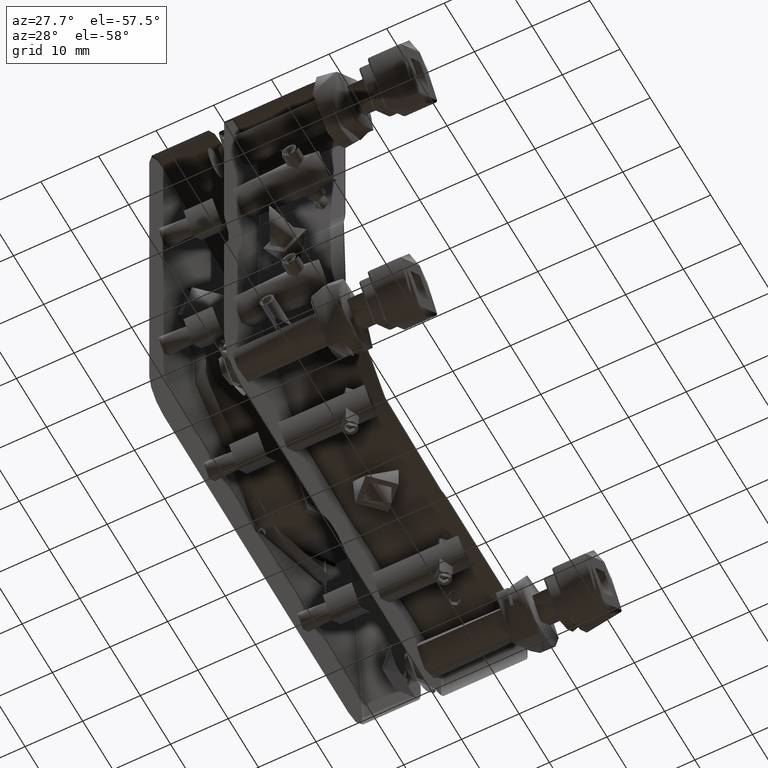
[diagram: clean part render]
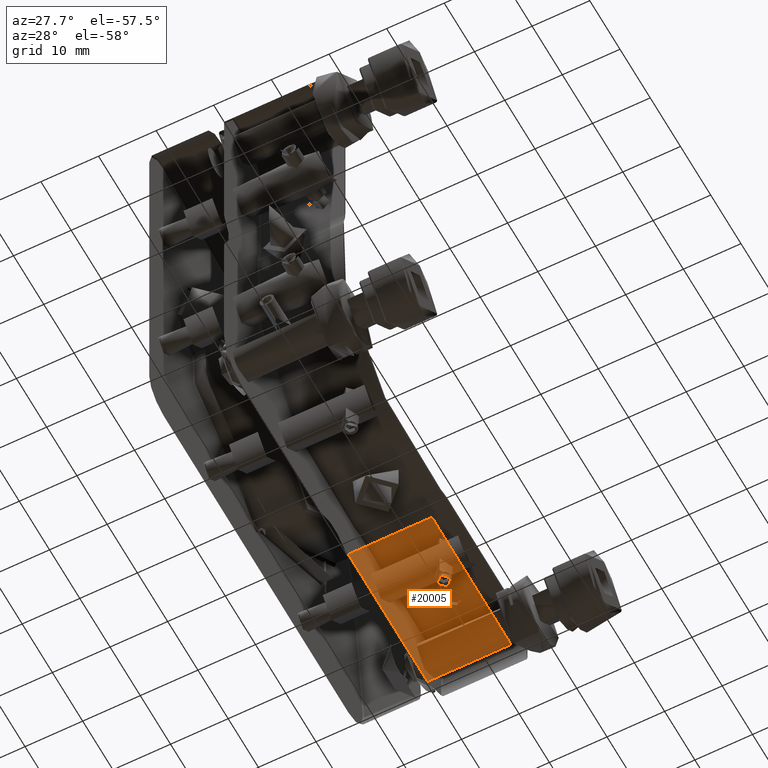
[diagram: same view with one face highlighted and labeled with its STEP entity id]
A machine part, auxiliary view. The second image highlights one B-rep face of the part: STEP entity #20005.
In plain terms, the highlighted planar face has unit normal (0, -0, 1).
Its self-contained STEP definition (entity closure, byte-faithful):
#103 = ORIENTED_EDGE ( 'NONE', *, *, #2857, .F. ) ;
#574 = FACE_BOUND ( 'NONE', #10744, .T. ) ;
#2796 = VERTEX_POINT ( 'NONE', #3361 ) ;
#2857 = EDGE_CURVE ( 'NONE', #14757, #14757, #5514, .T. ) ;
#3181 = AXIS2_PLACEMENT_3D ( 'NONE', #8709, #18130, #15195 ) ;
#3361 = CARTESIAN_POINT ( 'NONE',  ( -0.2256193229141859602, 3.013055641968951370, 15.50000000000000533 ) ) ;
#3937 = EDGE_LOOP ( 'NONE', ( #12840, #16280, #17909, #6180 ) ) ;
#3989 = CARTESIAN_POINT ( 'NONE',  ( 14.27438067708422409, 29.18292862304677016, 15.50000000002205880 ) ) ;
#4125 = CARTESIAN_POINT ( 'NONE',  ( 14.27438067708578906, 35.18292862304677016, 15.50000000000000711 ) ) ;
#4500 = CARTESIAN_POINT ( 'NONE',  ( 14.27438067708422409, 3.013055641968950482, 15.50000000000159517 ) ) ;
#4577 = CARTESIAN_POINT ( 'NONE',  ( -0.2256193229141846834, 35.18292862304677016, 15.50000000000000711 ) ) ;
#4679 = LINE ( 'NONE', #4577, #11988 ) ;
#5514 = CIRCLE ( 'NONE', #15529, 1.249999999999988898 ) ;
#5743 = EDGE_CURVE ( 'NONE', #2796, #11118, #19896, .T. ) ;
#6180 = ORIENTED_EDGE ( 'NONE', *, *, #6670, .T. ) ;
#6670 = EDGE_CURVE ( 'NONE', #17520, #11783, #8649, .T. ) ;
#6965 = CARTESIAN_POINT ( 'NONE',  ( 14.52438067708579972, 29.18292862304677016, 15.50000000000000355 ) ) ;
#7298 = EDGE_CURVE ( 'NONE', #11118, #17520, #9346, .T. ) ;
#8649 = LINE ( 'NONE', #6965, #14806 ) ;
#8709 = CARTESIAN_POINT ( 'NONE',  ( 14.52438067708579972, 35.18292862304677016, 15.50000000000000711 ) ) ;
#9346 = LINE ( 'NONE', #4125, #12460 ) ;
#9638 = EDGE_CURVE ( 'NONE', #2796, #11783, #4679, .T. ) ;
#9935 = CARTESIAN_POINT ( 'NONE',  ( 10.52438067708579972, 14.18292862304677016, 15.50000000000000711 ) ) ;
#10497 = DIRECTION ( 'NONE',  ( -0.000000000000000000, 1.000000000000000000, 9.505334114941409750E-17 ) ) ;
#10683 = CARTESIAN_POINT ( 'NONE',  ( 14.52438067708579972, 3.013055641968950926, 15.50000000000000355 ) ) ;
#10710 = CARTESIAN_POINT ( 'NONE',  ( -0.2256193229590482685, 29.18292862304677016, 15.50000000008674661 ) ) ;
#10744 = EDGE_LOOP ( 'NONE', ( #103 ) ) ;
#11118 = VERTEX_POINT ( 'NONE', #4500 ) ;
#11783 = VERTEX_POINT ( 'NONE', #10710 ) ;
#11988 = VECTOR ( 'NONE', #17528, 1000.000000000000000 ) ;
#12460 = VECTOR ( 'NONE', #10497, 1000.000000000000000 ) ;
#12840 = ORIENTED_EDGE ( 'NONE', *, *, #9638, .F. ) ;
#12931 = VECTOR ( 'NONE', #15604, 1000.000000000000000 ) ;
#13385 = CARTESIAN_POINT ( 'NONE',  ( 10.52438067708579972, 15.43292862304675772, 15.50000000000000711 ) ) ;
#13507 = PLANE ( 'NONE',  #3181 ) ;
#14757 = VERTEX_POINT ( 'NONE', #13385 ) ;
#14806 = VECTOR ( 'NONE', #18267, 1000.000000000000000 ) ;
#15195 = DIRECTION ( 'NONE',  ( 0.000000000000000000, -1.000000000000000000, -9.505334114941409750E-17 ) ) ;
#15529 = AXIS2_PLACEMENT_3D ( 'NONE', #9935, #15732, #19460 ) ;
#15604 = DIRECTION ( 'NONE',  ( 1.000000000000000000, 0.000000000000000000, 0.000000000000000000 ) ) ;
#15732 = DIRECTION ( 'NONE',  ( -0.000000000000000000, -1.334402673828313339E-16, 1.000000000000000000 ) ) ;
#16280 = ORIENTED_EDGE ( 'NONE', *, *, #5743, .T. ) ;
#16658 = FACE_OUTER_BOUND ( 'NONE', #3937, .T. ) ;
#17520 = VERTEX_POINT ( 'NONE', #3989 ) ;
#17528 = DIRECTION ( 'NONE',  ( 4.752667057470704875E-17, 1.000000000000000000, 4.752667057470375156E-17 ) ) ;
#17909 = ORIENTED_EDGE ( 'NONE', *, *, #7298, .T. ) ;
#18130 = DIRECTION ( 'NONE',  ( 0.000000000000000000, -9.505334114941409750E-17, 1.000000000000000000 ) ) ;
#18267 = DIRECTION ( 'NONE',  ( -1.000000000000000000, 0.000000000000000000, 0.000000000000000000 ) ) ;
#19460 = DIRECTION ( 'NONE',  ( 0.000000000000000000, 1.000000000000000000, 0.000000000000000000 ) ) ;
#19896 = LINE ( 'NONE', #10683, #12931 ) ;
#20005 = ADVANCED_FACE ( 'NONE', ( #16658, #574 ), #13507, .T. ) ;